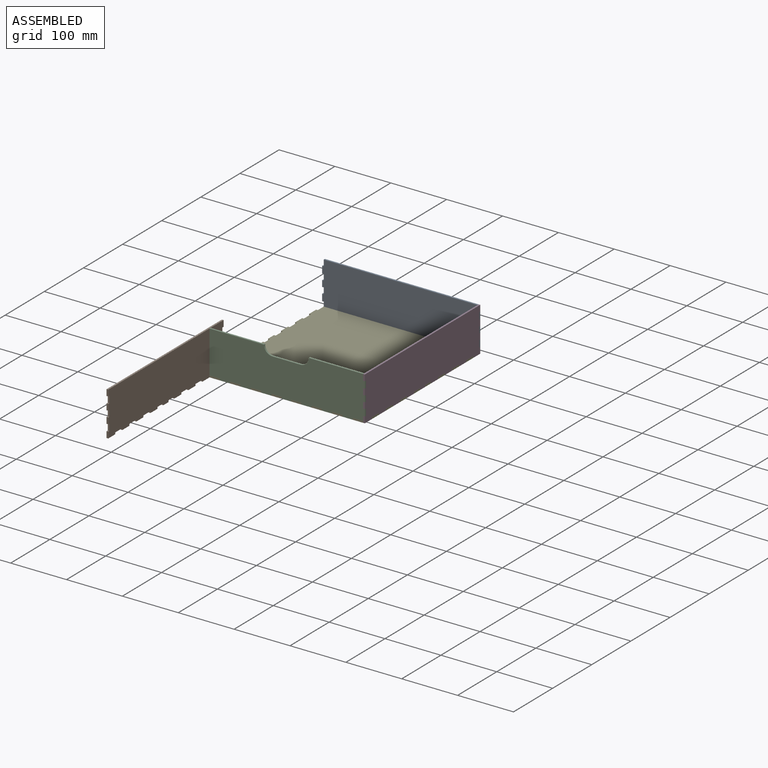
[diagram: assembled view]
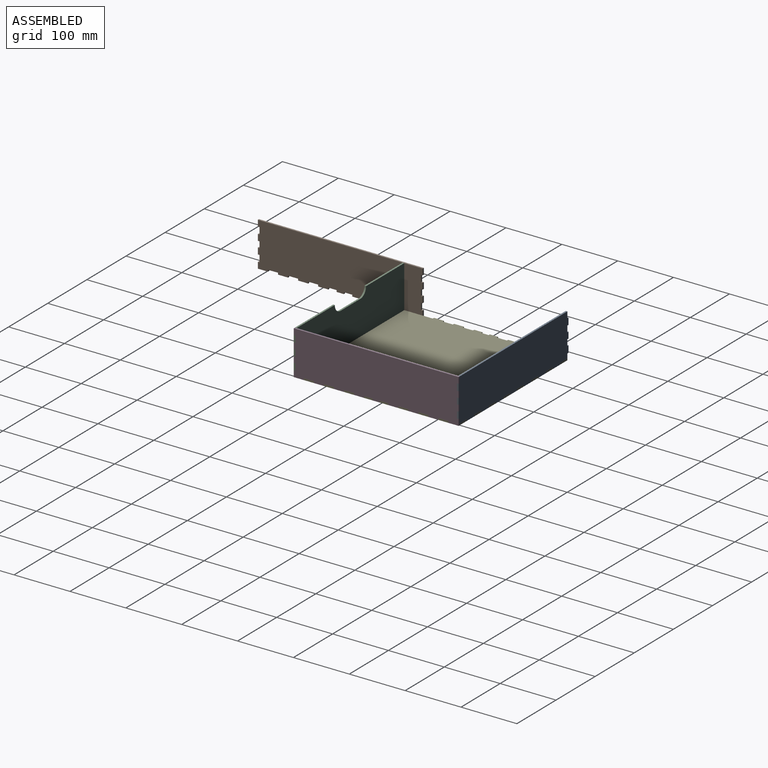
[diagram: assembled view, second angle]
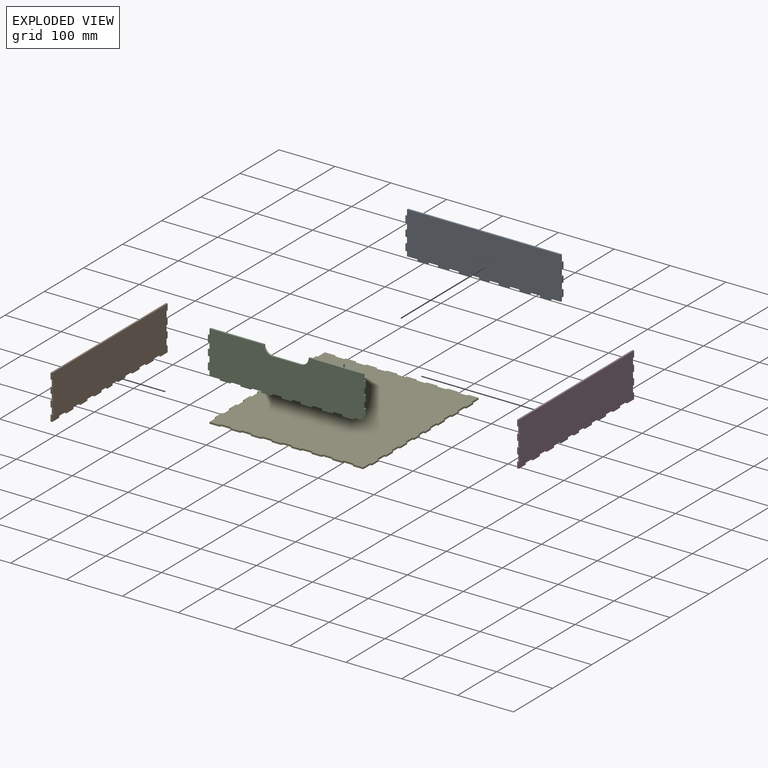
[diagram: exploded view]
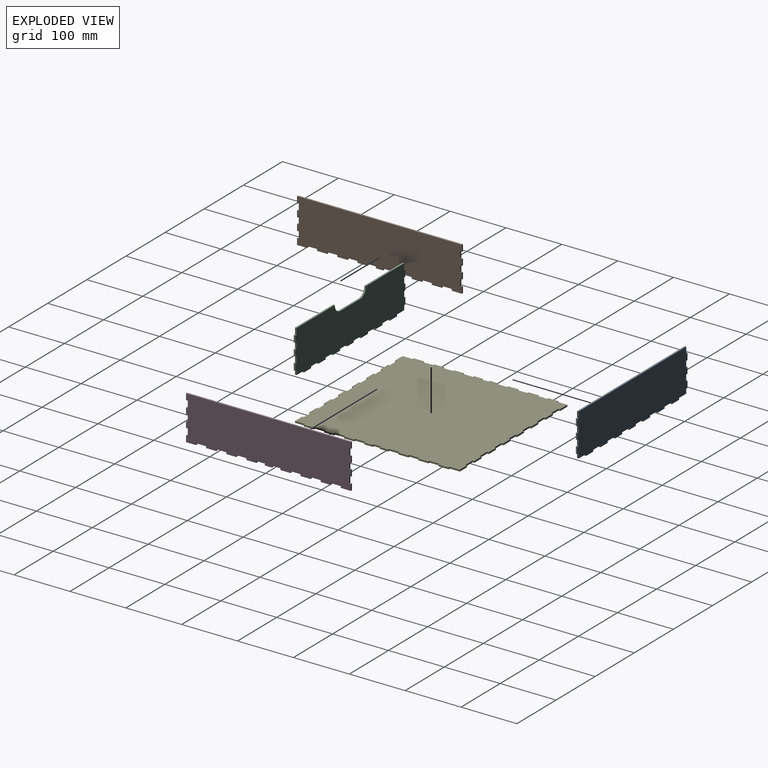
[diagram: exploded view, second angle]
ASSEMBLY  parts=5 mates=4
PART A: 58 faces, bbox 281x3x79 mm
  f0: plane 3x3mm, normal (0,0,1), area 9mm2, adj f1,f55,f56,f57
  f1: plane 11x3mm, normal (1,0,0), area 33mm2, adj f0,f2,f56,f57
  f2: plane 3x3mm, normal (0,0,-1), area 9mm2, adj f1,f3,f56,f57
  f3: plane 11x3mm, normal (1,0,0), area 33mm2, adj f2,f4,f56,f57
  f4: plane 3x3mm, normal (0,0,1), area 9mm2, adj f3,f5,f56,f57
  f5: plane 11x3mm, normal (1,0,0), area 33mm2, adj f4,f6,f56,f57
  f6: plane 3x3mm, normal (0,0,-1), area 9mm2, adj f5,f7,f56,f57
  f7: plane 12x3mm, normal (1,0,0), area 36mm2, adj f6,f8,f56,f57
  f8: plane 3x3mm, normal (0,0,1), area 9mm2, adj f7,f9,f56,f57
  f9: plane 11x3mm, normal (1,0,0), area 33mm2, adj f8,f10,f56,f57
  f10: plane 275x3mm, normal (0,0,1), area 825mm2, adj f9,f11,f56,f57
  f11: plane 11x3mm, normal (-1,0,0), area 33mm2, adj f10,f12,f56,f57
  f12: plane 3x3mm, normal (0,0,1), area 9mm2, adj f11,f13,f56,f57
  f13: plane 12x3mm, normal (-1,0,0), area 36mm2, adj f12,f14,f56,f57
  f14: plane 3x3mm, normal (0,0,-1), area 9mm2, adj f13,f15,f56,f57
  f15: plane 11x3mm, normal (-1,0,0), area 33mm2, adj f14,f16,f56,f57
  f16: plane 3x3mm, normal (0,0,1), area 9mm2, adj f15,f17,f56,f57
  f17: plane 11x3mm, normal (-1,0,0), area 33mm2, adj f16,f18,f56,f57
  f18: plane 3x3mm, normal (0,0,-1), area 9mm2, adj f17,f19,f56,f57
  f19: plane 11x3mm, normal (-1,0,0), area 33mm2, adj f18,f20,f56,f57
  f20: plane 3x3mm, normal (0,0,1), area 9mm2, adj f19,f21,f56,f57
  f21: plane 12x3mm, normal (-1,0,0), area 36mm2, adj f20,f22,f56,f57
  f22: plane 3x3mm, normal (0,0,-1), area 9mm2, adj f21,f23,f56,f57
  f23: plane 8x3mm, normal (-1,0,0), area 24mm2, adj f22,f24,f56,f57
  f24: plane 18.5x3mm, normal (0,0,-1), area 55.5mm2, adj f23,f25,f56,f57
  f25: plane 3x3mm, normal (-1,0,0), area 9mm2, adj f24,f26,f56,f57
  f26: plane 18.5x3mm, normal (0,0,-1), area 55.5mm2, adj f25,f27,f56,f57
  f27: plane 3x3mm, normal (1,0,0), area 9mm2, adj f26,f28,f56,f57
  f28: plane 18.5x3mm, normal (0,0,-1), area 55.5mm2, adj f27,f29,f56,f57
  f29: plane 3x3mm, normal (-1,0,0), area 9mm2, adj f28,f30,f56,f57
  f30: plane 18.5x3mm, normal (0,0,-1), area 55.5mm2, adj f29,f31,f56,f57
  f31: plane 3x3mm, normal (1,0,0), area 9mm2, adj f30,f32,f56,f57
  f32: plane 18.5x3mm, normal (0,0,-1), area 55.5mm2, adj f31,f33,f56,f57
  f33: plane 3x3mm, normal (-1,0,0), area 9mm2, adj f32,f34,f56,f57
  f34: plane 18.5x3mm, normal (0,0,-1), area 55.5mm2, adj f33,f35,f56,f57
  f35: plane 3x3mm, normal (1,0,0), area 9mm2, adj f34,f36,f56,f57
  f36: plane 18x3mm, normal (0,0,-1), area 54mm2, adj f35,f37,f56,f57
  f37: plane 3x3mm, normal (-1,0,0), area 9mm2, adj f36,f38,f56,f57
  f38: plane 17x3mm, normal (0,0,-1), area 51mm2, adj f37,f39,f56,f57
  f39: plane 3x3mm, normal (1,0,0), area 9mm2, adj f38,f40,f56,f57
  f40: plane 18x3mm, normal (0,0,-1), area 54mm2, adj f39,f41,f56,f57
  f41: plane 3x3mm, normal (-1,0,0), area 9mm2, adj f40,f42,f56,f57
  f42: plane 18.5x3mm, normal (0,0,-1), area 55.5mm2, adj f41,f43,f56,f57
  f43: plane 3x3mm, normal (1,0,0), area 9mm2, adj f42,f44,f56,f57
  f44: plane 18.5x3mm, normal (0,0,-1), area 55.5mm2, adj f43,f45,f56,f57
  f45: plane 3x3mm, normal (-1,0,0), area 9mm2, adj f44,f46,f56,f57
  f46: plane 18.5x3mm, normal (0,0,-1), area 55.5mm2, adj f45,f47,f56,f57
  f47: plane 3x3mm, normal (1,0,0), area 9mm2, adj f46,f48,f56,f57
  f48: plane 18.5x3mm, normal (0,0,-1), area 55.5mm2, adj f47,f49,f56,f57
  f49: plane 3x3mm, normal (-1,0,0), area 9mm2, adj f48,f50,f56,f57
  f50: plane 18.5x3mm, normal (0,0,-1), area 55.5mm2, adj f49,f51,f56,f57
  f51: plane 3x3mm, normal (1,0,0), area 9mm2, adj f50,f52,f56,f57
  f52: plane 18.5x3mm, normal (0,0,-1), area 55.5mm2, adj f51,f53,f56,f57
  f53: plane 8x3mm, normal (1,0,0), area 24mm2, adj f52,f54,f56,f57
  f54: plane 3x3mm, normal (0,0,-1), area 9mm2, adj f53,f55,f56,f57
  f55: plane 12x3mm, normal (1,0,0), area 36mm2, adj f0,f54,f56,f57
  f56: plane 281x79mm, normal (0,-1,0), area 21494mm2, adj f0,f1,f2,f3,f4,f5,f6,f7
  f57: plane 281x79mm, normal (0,1,0), area 21494mm2, adj f0,f1,f2,f3,f4,f5,f6,f7
PART B: 62 faces, bbox 3x295x79 mm
  f0: plane 3x3mm, normal (0,-1,0), area 9mm2, adj f1,f59,f60,f61
  f1: plane 18x3mm, normal (0,0,-1), area 54mm2, adj f0,f2,f60,f61
  f2: plane 3x3mm, normal (0,1,0), area 9mm2, adj f1,f3,f60,f61
  f3: plane 18x3mm, normal (0,0,-1), area 54mm2, adj f2,f4,f60,f61
  f4: plane 3x3mm, normal (0,-1,0), area 9mm2, adj f3,f5,f60,f61
  f5: plane 18x3mm, normal (0,0,-1), area 54mm2, adj f4,f6,f60,f61
  f6: plane 3x3mm, normal (0,1,0), area 9mm2, adj f5,f7,f60,f61
  f7: plane 18x3mm, normal (0,0,-1), area 54mm2, adj f6,f8,f60,f61
  f8: plane 3x3mm, normal (0,-1,0), area 9mm2, adj f7,f9,f60,f61
  f9: plane 18x3mm, normal (0,0,-1), area 54mm2, adj f8,f10,f60,f61
  f10: plane 3x3mm, normal (0,1,0), area 9mm2, adj f9,f11,f60,f61
  f11: plane 15x3mm, normal (0,0,-1), area 45mm2, adj f10,f12,f60,f61
  f12: plane 3x3mm, normal (0,-1,0), area 9mm2, adj f11,f13,f60,f61
  f13: plane 13x3mm, normal (0,0,-1), area 39mm2, adj f12,f14,f60,f61
  f14: plane 3x3mm, normal (0,1,0), area 9mm2, adj f13,f15,f60,f61
  f15: plane 15x3mm, normal (0,0,-1), area 45mm2, adj f14,f16,f60,f61
  f16: plane 3x3mm, normal (0,-1,0), area 9mm2, adj f15,f17,f60,f61
  f17: plane 18x3mm, normal (0,0,-1), area 54mm2, adj f16,f18,f60,f61
  f18: plane 3x3mm, normal (0,1,0), area 9mm2, adj f17,f19,f60,f61
  f19: plane 18x3mm, normal (0,0,-1), area 54mm2, adj f18,f20,f60,f61
  f20: plane 3x3mm, normal (0,-1,0), area 9mm2, adj f19,f21,f60,f61
  f21: plane 18x3mm, normal (0,0,-1), area 54mm2, adj f20,f22,f60,f61
  f22: plane 3x3mm, normal (0,1,0), area 9mm2, adj f21,f23,f60,f61
  f23: plane 18x3mm, normal (0,0,-1), area 54mm2, adj f22,f24,f60,f61
  f24: plane 3x3mm, normal (0,-1,0), area 9mm2, adj f23,f25,f60,f61
  f25: plane 18x3mm, normal (0,0,-1), area 54mm2, adj f24,f26,f60,f61
  f26: plane 3x3mm, normal (0,1,0), area 9mm2, adj f25,f27,f60,f61
  f27: plane 18x3mm, normal (0,0,-1), area 54mm2, adj f26,f28,f60,f61
  f28: plane 3x3mm, normal (0,-1,0), area 9mm2, adj f27,f29,f60,f61
  f29: plane 18x3mm, normal (0,0,-1), area 54mm2, adj f28,f30,f60,f61
  f30: plane 11x3mm, normal (0,1,0), area 33mm2, adj f29,f31,f60,f61
  f31: plane 3x3mm, normal (0,0,1), area 9mm2, adj f30,f32,f60,f61
  f32: plane 12x3mm, normal (0,1,0), area 36mm2, adj f31,f33,f60,f61
  f33: plane 3x3mm, normal (0,0,-1), area 9mm2, adj f32,f34,f60,f61
  f34: plane 11x3mm, normal (0,1,0), area 33mm2, adj f33,f35,f60,f61
  f35: plane 3x3mm, normal (0,0,1), area 9mm2, adj f34,f36,f60,f61
  f36: plane 11x3mm, normal (0,1,0), area 33mm2, adj f35,f37,f60,f61
  f37: plane 3x3mm, normal (0,0,-1), area 9mm2, adj f36,f38,f60,f61
  f38: plane 11x3mm, normal (0,1,0), area 33mm2, adj f37,f39,f60,f61
  f39: plane 3x3mm, normal (0,0,1), area 9mm2, adj f38,f40,f60,f61
  f40: plane 12x3mm, normal (0,1,0), area 36mm2, adj f39,f41,f60,f61
  f41: plane 3x3mm, normal (0,0,-1), area 9mm2, adj f40,f42,f60,f61
  f42: plane 11x3mm, normal (0,1,0), area 33mm2, adj f41,f43,f60,f61
  f43: plane 295x3mm, normal (0,0,1), area 885mm2, adj f42,f44,f60,f61
  f44: plane 11x3mm, normal (0,-1,0), area 33mm2, adj f43,f45,f60,f61
  f45: plane 3x3mm, normal (0,0,-1), area 9mm2, adj f44,f46,f60,f61
  f46: plane 12x3mm, normal (0,-1,0), area 36mm2, adj f45,f47,f60,f61
  f47: plane 3x3mm, normal (0,0,1), area 9mm2, adj f46,f48,f60,f61
  f48: plane 11x3mm, normal (0,-1,0), area 33mm2, adj f47,f49,f60,f61
  f49: plane 3x3mm, normal (0,0,-1), area 9mm2, adj f48,f50,f60,f61
  f50: plane 11x3mm, normal (0,-1,0), area 33mm2, adj f49,f51,f60,f61
  f51: plane 3x3mm, normal (0,0,1), area 9mm2, adj f50,f52,f60,f61
  f52: plane 11x3mm, normal (0,-1,0), area 33mm2, adj f51,f53,f60,f61
  f53: plane 3x3mm, normal (0,0,-1), area 9mm2, adj f52,f54,f60,f61
  f54: plane 12x3mm, normal (0,-1,0), area 36mm2, adj f53,f55,f60,f61
  f55: plane 3x3mm, normal (0,0,1), area 9mm2, adj f54,f56,f60,f61
  f56: plane 11x3mm, normal (0,-1,0), area 33mm2, adj f55,f57,f60,f61
  f57: plane 18x3mm, normal (0,0,-1), area 54mm2, adj f56,f58,f60,f61
  f58: plane 3x3mm, normal (0,1,0), area 9mm2, adj f57,f59,f60,f61
  f59: plane 18x3mm, normal (0,0,-1), area 54mm2, adj f0,f58,f60,f61
  f60: plane 295x79mm, normal (1,0,0), area 22681mm2, adj f0,f1,f2,f3,f4,f5,f6,f7
  f61: plane 295x79mm, normal (-1,0,0), area 22681mm2, adj f0,f1,f2,f3,f4,f5,f6,f7
PART C: 62 faces, bbox 281x3x79 mm
  f0: plane 3x3mm, normal (0,0,-1), area 9mm2, adj f1,f59,f60,f61
  f1: plane 11x3mm, normal (1,0,0), area 33mm2, adj f0,f2,f60,f61
  f2: plane 3x3mm, normal (0,0,1), area 9mm2, adj f1,f3,f60,f61
  f3: plane 11x3mm, normal (1,0,0), area 33mm2, adj f2,f4,f60,f61
  f4: plane 3x3mm, normal (0,0,-1), area 9mm2, adj f3,f5,f60,f61
  f5: plane 12x3mm, normal (1,0,0), area 36mm2, adj f4,f6,f60,f61
  f6: plane 3x3mm, normal (0,0,1), area 9mm2, adj f5,f7,f60,f61
  f7: plane 11x3mm, normal (1,0,0), area 33mm2, adj f6,f8,f60,f61
  f8: plane 97.5x3mm, normal (0,0,1), area 292.5mm2, adj f7,f9,f60,f61
  f9: cylinder r=15mm len=15mm, axis (0,-1,0), area 70.7mm2, adj f8,f10,f60,f61
  f10: plane 50x3mm, normal (0,0,1), area 150mm2, adj f9,f11,f60,f61
  f11: cylinder r=15mm len=15mm, axis (0,-1,0), area 70.7mm2, adj f10,f12,f60,f61
  f12: plane 97.5x3mm, normal (0,0,1), area 292.5mm2, adj f11,f13,f60,f61
  f13: plane 11x3mm, normal (-1,0,0), area 33mm2, adj f12,f14,f60,f61
  f14: plane 3x3mm, normal (0,0,1), area 9mm2, adj f13,f15,f60,f61
  f15: plane 12x3mm, normal (-1,0,0), area 36mm2, adj f14,f16,f60,f61
  f16: plane 3x3mm, normal (0,0,-1), area 9mm2, adj f15,f17,f60,f61
  f17: plane 11x3mm, normal (-1,0,0), area 33mm2, adj f16,f18,f60,f61
  f18: plane 3x3mm, normal (0,0,1), area 9mm2, adj f17,f19,f60,f61
  f19: plane 11x3mm, normal (-1,0,0), area 33mm2, adj f18,f20,f60,f61
  f20: plane 3x3mm, normal (0,0,-1), area 9mm2, adj f19,f21,f60,f61
  f21: plane 11x3mm, normal (-1,0,0), area 33mm2, adj f20,f22,f60,f61
  f22: plane 3x3mm, normal (0,0,1), area 9mm2, adj f21,f23,f60,f61
  f23: plane 12x3mm, normal (-1,0,0), area 36mm2, adj f22,f24,f60,f61
  f24: plane 3x3mm, normal (0,0,-1), area 9mm2, adj f23,f25,f60,f61
  f25: plane 8x3mm, normal (-1,0,0), area 24mm2, adj f24,f26,f60,f61
  f26: plane 18.5x3mm, normal (0,0,-1), area 55.5mm2, adj f25,f27,f60,f61
  f27: plane 3x3mm, normal (-1,0,0), area 9mm2, adj f26,f28,f60,f61
  f28: plane 18.5x3mm, normal (0,0,-1), area 55.5mm2, adj f27,f29,f60,f61
  f29: plane 3x3mm, normal (1,0,0), area 9mm2, adj f28,f30,f60,f61
  f30: plane 18.5x3mm, normal (0,0,-1), area 55.5mm2, adj f29,f31,f60,f61
  f31: plane 3x3mm, normal (-1,0,0), area 9mm2, adj f30,f32,f60,f61
  f32: plane 18.5x3mm, normal (0,0,-1), area 55.5mm2, adj f31,f33,f60,f61
  f33: plane 3x3mm, normal (1,0,0), area 9mm2, adj f32,f34,f60,f61
  f34: plane 18.5x3mm, normal (0,0,-1), area 55.5mm2, adj f33,f35,f60,f61
  f35: plane 3x3mm, normal (-1,0,0), area 9mm2, adj f34,f36,f60,f61
  f36: plane 18.5x3mm, normal (0,0,-1), area 55.5mm2, adj f35,f37,f60,f61
  f37: plane 3x3mm, normal (1,0,0), area 9mm2, adj f36,f38,f60,f61
  f38: plane 18x3mm, normal (0,0,-1), area 54mm2, adj f37,f39,f60,f61
  f39: plane 3x3mm, normal (-1,0,0), area 9mm2, adj f38,f40,f60,f61
  f40: plane 17x3mm, normal (0,0,-1), area 51mm2, adj f39,f41,f60,f61
  f41: plane 3x3mm, normal (1,0,0), area 9mm2, adj f40,f42,f60,f61
  f42: plane 18x3mm, normal (0,0,-1), area 54mm2, adj f41,f43,f60,f61
  f43: plane 3x3mm, normal (-1,0,0), area 9mm2, adj f42,f44,f60,f61
  f44: plane 18.5x3mm, normal (0,0,-1), area 55.5mm2, adj f43,f45,f60,f61
  f45: plane 3x3mm, normal (1,0,0), area 9mm2, adj f44,f46,f60,f61
  f46: plane 18.5x3mm, normal (0,0,-1), area 55.5mm2, adj f45,f47,f60,f61
  f47: plane 3x3mm, normal (-1,0,0), area 9mm2, adj f46,f48,f60,f61
  f48: plane 18.5x3mm, normal (0,0,-1), area 55.5mm2, adj f47,f49,f60,f61
  f49: plane 3x3mm, normal (1,0,0), area 9mm2, adj f48,f50,f60,f61
  f50: plane 18.5x3mm, normal (0,0,-1), area 55.5mm2, adj f49,f51,f60,f61
  f51: plane 3x3mm, normal (-1,0,0), area 9mm2, adj f50,f52,f60,f61
  f52: plane 18.5x3mm, normal (0,0,-1), area 55.5mm2, adj f51,f53,f60,f61
  f53: plane 3x3mm, normal (1,0,0), area 9mm2, adj f52,f54,f60,f61
  f54: plane 18.5x3mm, normal (0,0,-1), area 55.5mm2, adj f53,f55,f60,f61
  f55: plane 8x3mm, normal (1,0,0), area 24mm2, adj f54,f56,f60,f61
  f56: plane 3x3mm, normal (0,0,-1), area 9mm2, adj f55,f57,f60,f61
  f57: plane 12x3mm, normal (1,0,0), area 36mm2, adj f56,f58,f60,f61
  f58: plane 3x3mm, normal (0,0,1), area 9mm2, adj f57,f59,f60,f61
  f59: plane 11x3mm, normal (1,0,0), area 33mm2, adj f0,f58,f60,f61
  f60: plane 281x79mm, normal (0,-1,0), area 20390.6mm2, adj f0,f1,f2,f3,f4,f5,f6,f7
  f61: plane 281x79mm, normal (0,1,0), area 20390.6mm2, adj f0,f1,f2,f3,f4,f5,f6,f7
PART D: same geometry as B
PART E: 126 faces, bbox 281x295x3 mm
  f0: plane 18x3mm, normal (-1,0,0), area 54mm2, adj f1,f123,f124,f125
  f1: plane 3x3mm, normal (0,1,0), area 9mm2, adj f0,f2,f124,f125
  f2: plane 18x3mm, normal (-1,0,0), area 54mm2, adj f1,f3,f124,f125
  f3: plane 3x3mm, normal (0,-1,0), area 9mm2, adj f2,f4,f124,f125
  f4: plane 18x3mm, normal (-1,0,0), area 54mm2, adj f3,f5,f124,f125
  f5: plane 3x3mm, normal (0,1,0), area 9mm2, adj f4,f6,f124,f125
  f6: plane 18x3mm, normal (-1,0,0), area 54mm2, adj f5,f7,f124,f125
  f7: plane 3x3mm, normal (0,-1,0), area 9mm2, adj f6,f8,f124,f125
  f8: plane 18x3mm, normal (-1,0,0), area 54mm2, adj f7,f9,f124,f125
  f9: plane 3x3mm, normal (0,1,0), area 9mm2, adj f8,f10,f124,f125
  f10: plane 18x3mm, normal (-1,0,0), area 54mm2, adj f9,f11,f124,f125
  f11: plane 3x3mm, normal (0,-1,0), area 9mm2, adj f10,f12,f124,f125
  f12: plane 18x3mm, normal (-1,0,0), area 54mm2, adj f11,f13,f124,f125
  f13: plane 3x3mm, normal (0,1,0), area 9mm2, adj f12,f14,f124,f125
  f14: plane 15x3mm, normal (-1,0,0), area 45mm2, adj f13,f15,f124,f125
  f15: plane 3x3mm, normal (0,-1,0), area 9mm2, adj f14,f16,f124,f125
  f16: plane 13x3mm, normal (-1,0,0), area 39mm2, adj f15,f17,f124,f125
  f17: plane 3x3mm, normal (0,1,0), area 9mm2, adj f16,f18,f124,f125
  f18: plane 15x3mm, normal (-1,0,0), area 45mm2, adj f17,f19,f124,f125
  f19: plane 3x3mm, normal (0,-1,0), area 9mm2, adj f18,f20,f124,f125
  f20: plane 18x3mm, normal (-1,0,0), area 54mm2, adj f19,f21,f124,f125
  f21: plane 3x3mm, normal (0,1,0), area 9mm2, adj f20,f22,f124,f125
  f22: plane 18x3mm, normal (-1,0,0), area 54mm2, adj f21,f23,f124,f125
  f23: plane 3x3mm, normal (0,-1,0), area 9mm2, adj f22,f24,f124,f125
  f24: plane 18x3mm, normal (-1,0,0), area 54mm2, adj f23,f25,f124,f125
  f25: plane 3x3mm, normal (0,1,0), area 9mm2, adj f24,f26,f124,f125
  f26: plane 18x3mm, normal (-1,0,0), area 54mm2, adj f25,f27,f124,f125
  f27: plane 3x3mm, normal (0,-1,0), area 9mm2, adj f26,f28,f124,f125
  f28: plane 18x3mm, normal (-1,0,0), area 54mm2, adj f27,f29,f124,f125
  f29: plane 3x3mm, normal (0,1,0), area 9mm2, adj f28,f30,f124,f125
  f30: plane 18x3mm, normal (-1,0,0), area 54mm2, adj f29,f31,f124,f125
  f31: plane 3x3mm, normal (0,-1,0), area 9mm2, adj f30,f32,f124,f125
  f32: plane 18x3mm, normal (-1,0,0), area 54mm2, adj f31,f33,f124,f125
  f33: plane 18.5x3mm, normal (0,-1,0), area 55.5mm2, adj f32,f34,f124,f125
  f34: plane 3x3mm, normal (1,0,0), area 9mm2, adj f33,f35,f124,f125
  f35: plane 18.5x3mm, normal (0,-1,0), area 55.5mm2, adj f34,f36,f124,f125
  f36: plane 3x3mm, normal (-1,0,0), area 9mm2, adj f35,f37,f124,f125
  f37: plane 18.5x3mm, normal (0,-1,0), area 55.5mm2, adj f36,f38,f124,f125
  f38: plane 3x3mm, normal (1,0,0), area 9mm2, adj f37,f39,f124,f125
  f39: plane 18.5x3mm, normal (0,-1,0), area 55.5mm2, adj f38,f40,f124,f125
  f40: plane 3x3mm, normal (-1,0,0), area 9mm2, adj f39,f41,f124,f125
  f41: plane 18.5x3mm, normal (0,-1,0), area 55.5mm2, adj f40,f42,f124,f125
  f42: plane 3x3mm, normal (1,0,0), area 9mm2, adj f41,f43,f124,f125
  f43: plane 18.5x3mm, normal (0,-1,0), area 55.5mm2, adj f42,f44,f124,f125
  f44: plane 3x3mm, normal (-1,0,0), area 9mm2, adj f43,f45,f124,f125
  f45: plane 18x3mm, normal (0,-1,0), area 54mm2, adj f44,f46,f124,f125
  f46: plane 3x3mm, normal (1,0,0), area 9mm2, adj f45,f47,f124,f125
  f47: plane 17x3mm, normal (0,-1,0), area 51mm2, adj f46,f48,f124,f125
  f48: plane 3x3mm, normal (-1,0,0), area 9mm2, adj f47,f49,f124,f125
  f49: plane 18x3mm, normal (0,-1,0), area 54mm2, adj f48,f50,f124,f125
  f50: plane 3x3mm, normal (1,0,0), area 9mm2, adj f49,f51,f124,f125
  f51: plane 18.5x3mm, normal (0,-1,0), area 55.5mm2, adj f50,f52,f124,f125
  f52: plane 3x3mm, normal (-1,0,0), area 9mm2, adj f51,f53,f124,f125
  f53: plane 18.5x3mm, normal (0,-1,0), area 55.5mm2, adj f52,f54,f124,f125
  f54: plane 3x3mm, normal (1,0,0), area 9mm2, adj f53,f55,f124,f125
  f55: plane 18.5x3mm, normal (0,-1,0), area 55.5mm2, adj f54,f56,f124,f125
  f56: plane 3x3mm, normal (-1,0,0), area 9mm2, adj f55,f57,f124,f125
  f57: plane 18.5x3mm, normal (0,-1,0), area 55.5mm2, adj f56,f58,f124,f125
  f58: plane 3x3mm, normal (1,0,0), area 9mm2, adj f57,f59,f124,f125
  f59: plane 18.5x3mm, normal (0,-1,0), area 55.5mm2, adj f58,f60,f124,f125
  f60: plane 3x3mm, normal (-1,0,0), area 9mm2, adj f59,f61,f124,f125
  f61: plane 18.5x3mm, normal (0,-1,0), area 55.5mm2, adj f60,f62,f124,f125
  f62: plane 18x3mm, normal (1,0,0), area 54mm2, adj f61,f63,f124,f125
  f63: plane 3x3mm, normal (0,-1,0), area 9mm2, adj f62,f64,f124,f125
  f64: plane 18x3mm, normal (1,0,0), area 54mm2, adj f63,f65,f124,f125
  f65: plane 3x3mm, normal (0,1,0), area 9mm2, adj f64,f66,f124,f125
  f66: plane 18x3mm, normal (1,0,0), area 54mm2, adj f65,f67,f124,f125
  f67: plane 3x3mm, normal (0,-1,0), area 9mm2, adj f66,f68,f124,f125
  f68: plane 18x3mm, normal (1,0,0), area 54mm2, adj f67,f69,f124,f125
  f69: plane 3x3mm, normal (0,1,0), area 9mm2, adj f68,f70,f124,f125
  f70: plane 18x3mm, normal (1,0,0), area 54mm2, adj f69,f71,f124,f125
  f71: plane 3x3mm, normal (0,-1,0), area 9mm2, adj f70,f72,f124,f125
  f72: plane 18x3mm, normal (1,0,0), area 54mm2, adj f71,f73,f124,f125
  f73: plane 3x3mm, normal (0,1,0), area 9mm2, adj f72,f74,f124,f125
  f74: plane 18x3mm, normal (1,0,0), area 54mm2, adj f73,f75,f124,f125
  f75: plane 3x3mm, normal (0,-1,0), area 9mm2, adj f74,f76,f124,f125
  f76: plane 15x3mm, normal (1,0,0), area 45mm2, adj f75,f77,f124,f125
  f77: plane 3x3mm, normal (0,1,0), area 9mm2, adj f76,f78,f124,f125
  f78: plane 13x3mm, normal (1,0,0), area 39mm2, adj f77,f79,f124,f125
  f79: plane 3x3mm, normal (0,-1,0), area 9mm2, adj f78,f80,f124,f125
  f80: plane 15x3mm, normal (1,0,0), area 45mm2, adj f79,f81,f124,f125
  f81: plane 3x3mm, normal (0,1,0), area 9mm2, adj f80,f82,f124,f125
  f82: plane 18x3mm, normal (1,0,0), area 54mm2, adj f81,f83,f124,f125
  f83: plane 3x3mm, normal (0,-1,0), area 9mm2, adj f82,f84,f124,f125
  f84: plane 18x3mm, normal (1,0,0), area 54mm2, adj f83,f85,f124,f125
  f85: plane 3x3mm, normal (0,1,0), area 9mm2, adj f84,f86,f124,f125
  f86: plane 18x3mm, normal (1,0,0), area 54mm2, adj f85,f87,f124,f125
  f87: plane 3x3mm, normal (0,-1,0), area 9mm2, adj f86,f88,f124,f125
  f88: plane 18x3mm, normal (1,0,0), area 54mm2, adj f87,f89,f124,f125
  f89: plane 3x3mm, normal (0,1,0), area 9mm2, adj f88,f90,f124,f125
  f90: plane 18x3mm, normal (1,0,0), area 54mm2, adj f89,f91,f124,f125
  f91: plane 3x3mm, normal (0,-1,0), area 9mm2, adj f90,f92,f124,f125
  f92: plane 18x3mm, normal (1,0,0), area 54mm2, adj f91,f93,f124,f125
  f93: plane 3x3mm, normal (0,1,0), area 9mm2, adj f92,f94,f124,f125
  f94: plane 18x3mm, normal (1,0,0), area 54mm2, adj f93,f95,f124,f125
  f95: plane 18.5x3mm, normal (0,1,0), area 55.5mm2, adj f94,f96,f124,f125
  f96: plane 3x3mm, normal (-1,0,0), area 9mm2, adj f95,f97,f124,f125
  f97: plane 18.5x3mm, normal (0,1,0), area 55.5mm2, adj f96,f98,f124,f125
  f98: plane 3x3mm, normal (1,0,0), area 9mm2, adj f97,f99,f124,f125
  f99: plane 18.5x3mm, normal (0,1,0), area 55.5mm2, adj f98,f100,f124,f125
  f100: plane 3x3mm, normal (-1,0,0), area 9mm2, adj f99,f101,f124,f125
  f101: plane 18.5x3mm, normal (0,1,0), area 55.5mm2, adj f100,f102,f124,f125
  f102: plane 3x3mm, normal (1,0,0), area 9mm2, adj f101,f103,f124,f125
  f103: plane 18.5x3mm, normal (0,1,0), area 55.5mm2, adj f102,f104,f124,f125
  f104: plane 3x3mm, normal (-1,0,0), area 9mm2, adj f103,f105,f124,f125
  f105: plane 18.5x3mm, normal (0,1,0), area 55.5mm2, adj f104,f106,f124,f125
  f106: plane 3x3mm, normal (1,0,0), area 9mm2, adj f105,f107,f124,f125
  f107: plane 18x3mm, normal (0,1,0), area 54mm2, adj f106,f108,f124,f125
  f108: plane 3x3mm, normal (-1,0,0), area 9mm2, adj f107,f109,f124,f125
  f109: plane 17x3mm, normal (0,1,0), area 51mm2, adj f108,f110,f124,f125
  f110: plane 3x3mm, normal (1,0,0), area 9mm2, adj f109,f111,f124,f125
  f111: plane 18x3mm, normal (0,1,0), area 54mm2, adj f110,f112,f124,f125
  f112: plane 3x3mm, normal (-1,0,0), area 9mm2, adj f111,f113,f124,f125
  f113: plane 18.5x3mm, normal (0,1,0), area 55.5mm2, adj f112,f114,f124,f125
  f114: plane 3x3mm, normal (1,0,0), area 9mm2, adj f113,f115,f124,f125
  f115: plane 18.5x3mm, normal (0,1,0), area 55.5mm2, adj f114,f116,f124,f125
  f116: plane 3x3mm, normal (-1,0,0), area 9mm2, adj f115,f117,f124,f125
  f117: plane 18.5x3mm, normal (0,1,0), area 55.5mm2, adj f116,f118,f124,f125
  f118: plane 3x3mm, normal (1,0,0), area 9mm2, adj f117,f119,f124,f125
  f119: plane 18.5x3mm, normal (0,1,0), area 55.5mm2, adj f118,f120,f124,f125
  f120: plane 3x3mm, normal (-1,0,0), area 9mm2, adj f119,f121,f124,f125
  f121: plane 18.5x3mm, normal (0,1,0), area 55.5mm2, adj f120,f122,f124,f125
  f122: plane 3x3mm, normal (1,0,0), area 9mm2, adj f121,f123,f124,f125
  f123: plane 18.5x3mm, normal (0,1,0), area 55.5mm2, adj f0,f122,f124,f125
  f124: plane 295x281mm, normal (0,0,1), area 81185mm2, adj f0,f1,f2,f3,f4,f5,f6,f7
  f125: plane 295x281mm, normal (0,0,-1), area 81185mm2, adj f0,f1,f2,f3,f4,f5,f6,f7
PLACE A t=(10.8,141.49,19.62)mm
PLACE B t=(-129.7,-265.01,19.62)mm
PLACE C t=(10.8,-150.51,19.62)mm
PLACE D t=(148.3,-6.01,19.62)mm
PLACE E t=(10.8,-6.01,-19.88)mm
MATE fastened D.f60 <-> E.f64  axis (1,0,0) through (151.3,-135.51,-16.88)mm
MATE fastened A.f57 <-> E.f95  axis (0,1,0) through (129.8,141.49,-16.88)mm
MATE fastened B.f61 <-> E.f30  axis (-1,0,0) through (-129.7,-135.51,-16.88)mm
MATE fastened C.f60 <-> E.f61  axis (0,-1,0) through (129.8,-153.51,-16.88)mm
